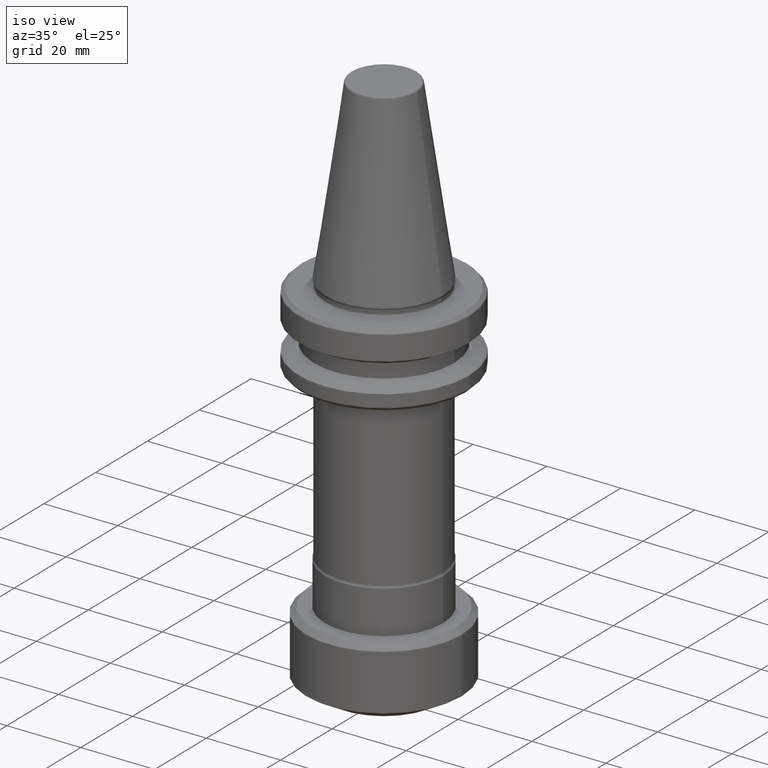
[diagram: clean part render]
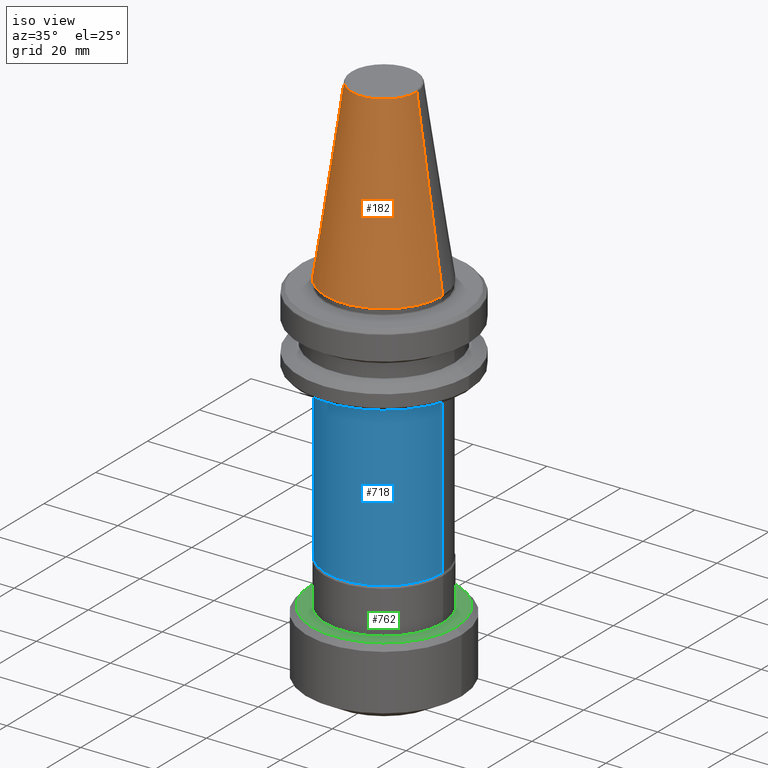
[diagram: same view with three faces highlighted in distinct colors, each labeled with its STEP entity id]
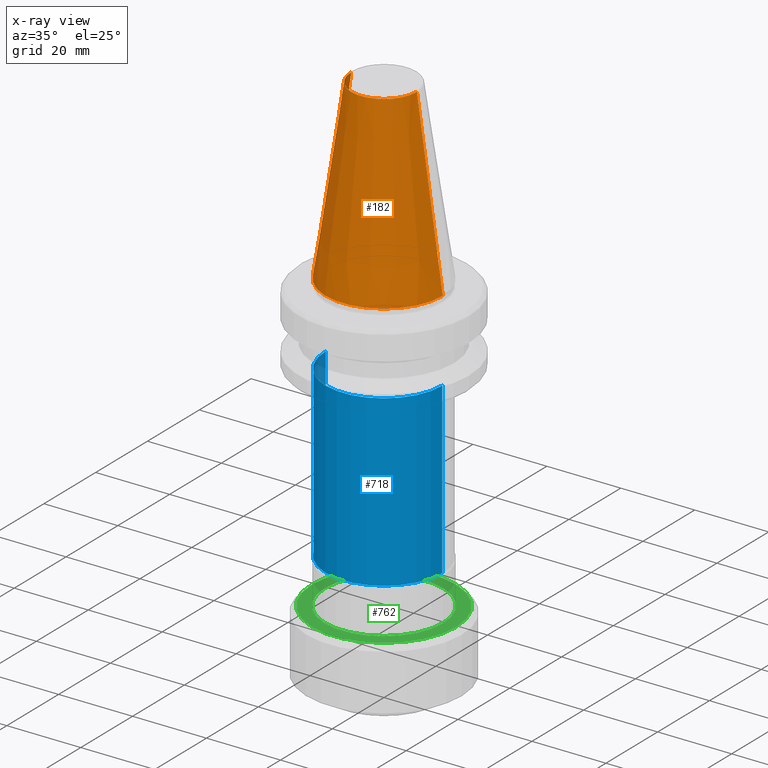
[diagram: x-ray of the same camera — body ghosted, the three highlighted faces saturated]
A machine part, iso view with three faces highlighted in distinct colors.
The next image is the same camera in x-ray (body ghosted, the three faces saturated) — at least one of them is partly hidden behind the body in this view.
Their STEP definitions:

[orange] entity #182 — the highlighted conical surface has half-angle 8.297 deg.
#20 = DIRECTION ( 'NONE',  ( 1.000000000000000000, 0.0000000000000000000, 0.0000000000000000000 ) ) ;
#31 = CARTESIAN_POINT ( 'NONE',  ( 15.87500000000000000, 0.0000000000000000000, 0.0000000000000000000 ) ) ;
#82 = CIRCLE ( 'NONE', #1374, 15.87500000000000000 ) ;
#118 = EDGE_CURVE ( 'NONE', #1371, #403, #773, .T. ) ;
#170 = AXIS2_PLACEMENT_3D ( 'NONE', #1275, #274, #1435 ) ;
#182 = ADVANCED_FACE ( 'NONE', ( #395 ), #1227, .T. ) ;
#197 = DIRECTION ( 'NONE',  ( -0.1443082272673070200, 0.0000000000000000000, -0.9895327864921743500 ) ) ;
#245 = ORIENTED_EDGE ( 'NONE', *, *, #118, .T. ) ;
#265 = ORIENTED_EDGE ( 'NONE', *, *, #982, .T. ) ;
#274 = DIRECTION ( 'NONE',  ( 0.0000000000000000000, 0.0000000000000000000, -1.000000000000000000 ) ) ;
#298 = VECTOR ( 'NONE', #738, 1000.000000000000000 ) ;
#395 = FACE_OUTER_BOUND ( 'NONE', #462, .T. ) ;
#403 = VERTEX_POINT ( 'NONE', #1173 ) ;
#462 = EDGE_LOOP ( 'NONE', ( #699, #868, #245, #265 ) ) ;
#575 = DIRECTION ( 'NONE',  ( -0.0000000000000000000, -0.0000000000000000000, 1.000000000000000000 ) ) ;
#669 = EDGE_CURVE ( 'NONE', #862, #947, #742, .T. ) ;
#698 = DIRECTION ( 'NONE',  ( -0.0000000000000000000, -0.0000000000000000000, 1.000000000000000000 ) ) ;
#699 = ORIENTED_EDGE ( 'NONE', *, *, #669, .F. ) ;
#738 = DIRECTION ( 'NONE',  ( 0.1443082272673070200, 1.767266086135363300E-017, -0.9895327864921743500 ) ) ;
#740 = VECTOR ( 'NONE', #197, 1000.000000000000000 ) ;
#742 = LINE ( 'NONE', #1286, #298 ) ;
#773 = LINE ( 'NONE', #1315, #740 ) ;
#787 = CARTESIAN_POINT ( 'NONE',  ( -8.878994801553478300, 0.0000000000000000000, 47.97215411363367100 ) ) ;
#862 = VERTEX_POINT ( 'NONE', #1320 ) ;
#868 = ORIENTED_EDGE ( 'NONE', *, *, #994, .F. ) ;
#947 = VERTEX_POINT ( 'NONE', #31 ) ;
#982 = EDGE_CURVE ( 'NONE', #403, #947, #82, .T. ) ;
#994 = EDGE_CURVE ( 'NONE', #1371, #862, #1302, .T. ) ;
#1173 = CARTESIAN_POINT ( 'NONE',  ( -15.87500000000000000, 1.944126793646423200E-015, 0.0000000000000000000 ) ) ;
#1216 = AXIS2_PLACEMENT_3D ( 'NONE', #1238, #575, #1341 ) ;
#1227 = CONICAL_SURFACE ( 'NONE', #170, 8.878994801553478300, 0.1448138465474190200 ) ;
#1238 = CARTESIAN_POINT ( 'NONE',  ( 0.0000000000000000000, 0.0000000000000000000, 47.97215411363367100 ) ) ;
#1275 = CARTESIAN_POINT ( 'NONE',  ( 0.0000000000000000000, 0.0000000000000000000, 47.97215411363367100 ) ) ;
#1286 = CARTESIAN_POINT ( 'NONE',  ( 8.878994801553478300, 1.087363256336845500E-015, 47.97215411363367100 ) ) ;
#1302 = CIRCLE ( 'NONE', #1216, 8.878994801553478300 ) ;
#1315 = CARTESIAN_POINT ( 'NONE',  ( -8.878994801553478300, 0.0000000000000000000, 47.97215411363367100 ) ) ;
#1320 = CARTESIAN_POINT ( 'NONE',  ( 8.878994801553478300, 1.515745024991634300E-015, 47.97215411363367100 ) ) ;
#1341 = DIRECTION ( 'NONE',  ( 1.000000000000000000, 0.0000000000000000000, 0.0000000000000000000 ) ) ;
#1350 = CARTESIAN_POINT ( 'NONE',  ( 0.0000000000000000000, 0.0000000000000000000, 0.0000000000000000000 ) ) ;
#1371 = VERTEX_POINT ( 'NONE', #787 ) ;
#1374 = AXIS2_PLACEMENT_3D ( 'NONE', #1350, #698, #20 ) ;
#1435 = DIRECTION ( 'NONE',  ( -1.000000000000000000, 0.0000000000000000000, 0.0000000000000000000 ) ) ;

[blue] entity #718 — the highlighted cylindrical surface (partial cylindrical patch) has radius 15.75 mm, axis along (-0, -0, 1).
#7 = ORIENTED_EDGE ( 'NONE', *, *, #736, .F. ) ;
#123 = ORIENTED_EDGE ( 'NONE', *, *, #1099, .F. ) ;
#128 = CIRCLE ( 'NONE', #417, 15.75000000000000400 ) ;
#149 = CARTESIAN_POINT ( 'NONE',  ( -15.74999999999999300, 1.928818708657081000E-015, -22.00000000000000700 ) ) ;
#151 = EDGE_CURVE ( 'NONE', #570, #838, #128, .T. ) ;
#166 = LINE ( 'NONE', #883, #717 ) ;
#200 = CARTESIAN_POINT ( 'NONE',  ( 15.75000000000000400, 0.0000000000000000000, -67.77940395325514100 ) ) ;
#236 = VECTOR ( 'NONE', #661, 1000.000000000000000 ) ;
#282 = CARTESIAN_POINT ( 'NONE',  ( -15.75000000000000400, 1.928818708657081700E-015, -67.77940395325514100 ) ) ;
#305 = ORIENTED_EDGE ( 'NONE', *, *, #151, .T. ) ;
#399 = DIRECTION ( 'NONE',  ( -0.0000000000000000000, -0.0000000000000000000, 1.000000000000000000 ) ) ;
#402 = AXIS2_PLACEMENT_3D ( 'NONE', #1014, #1233, #1122 ) ;
#409 = AXIS2_PLACEMENT_3D ( 'NONE', #1072, #399, #1187 ) ;
#417 = AXIS2_PLACEMENT_3D ( 'NONE', #887, #1228, #443 ) ;
#434 = VERTEX_POINT ( 'NONE', #149 ) ;
#443 = DIRECTION ( 'NONE',  ( 1.000000000000000000, 0.0000000000000000000, 0.0000000000000000000 ) ) ;
#487 = EDGE_LOOP ( 'NONE', ( #123, #305, #964, #7 ) ) ;
#568 = FACE_OUTER_BOUND ( 'NONE', #487, .T. ) ;
#570 = VERTEX_POINT ( 'NONE', #282 ) ;
#579 = LINE ( 'NONE', #986, #236 ) ;
#661 = DIRECTION ( 'NONE',  ( -0.0000000000000000000, -0.0000000000000000000, 1.000000000000000000 ) ) ;
#717 = VECTOR ( 'NONE', #998, 1000.000000000000000 ) ;
#718 = ADVANCED_FACE ( 'NONE', ( #568 ), #1370, .T. ) ;
#736 = EDGE_CURVE ( 'NONE', #434, #764, #819, .T. ) ;
#764 = VERTEX_POINT ( 'NONE', #971 ) ;
#819 = CIRCLE ( 'NONE', #409, 15.74999999999999300 ) ;
#838 = VERTEX_POINT ( 'NONE', #200 ) ;
#883 = CARTESIAN_POINT ( 'NONE',  ( -15.75000000000000000, 1.928818708657081300E-015, 88.34764052968309000 ) ) ;
#887 = CARTESIAN_POINT ( 'NONE',  ( 0.0000000000000000000, 0.0000000000000000000, -67.77940395325514100 ) ) ;
#964 = ORIENTED_EDGE ( 'NONE', *, *, #1065, .T. ) ;
#971 = CARTESIAN_POINT ( 'NONE',  ( 15.74999999999999300, 0.0000000000000000000, -22.00000000000000700 ) ) ;
#986 = CARTESIAN_POINT ( 'NONE',  ( 15.75000000000000000, 0.0000000000000000000, 88.34764052968309000 ) ) ;
#998 = DIRECTION ( 'NONE',  ( -0.0000000000000000000, -0.0000000000000000000, 1.000000000000000000 ) ) ;
#1014 = CARTESIAN_POINT ( 'NONE',  ( 0.0000000000000000000, 0.0000000000000000000, 88.34764052968309000 ) ) ;
#1065 = EDGE_CURVE ( 'NONE', #838, #764, #579, .T. ) ;
#1072 = CARTESIAN_POINT ( 'NONE',  ( 0.0000000000000000000, 0.0000000000000000000, -22.00000000000000700 ) ) ;
#1099 = EDGE_CURVE ( 'NONE', #570, #434, #166, .T. ) ;
#1122 = DIRECTION ( 'NONE',  ( 1.000000000000000000, 0.0000000000000000000, 0.0000000000000000000 ) ) ;
#1187 = DIRECTION ( 'NONE',  ( 1.000000000000000000, 0.0000000000000000000, 0.0000000000000000000 ) ) ;
#1228 = DIRECTION ( 'NONE',  ( -0.0000000000000000000, -0.0000000000000000000, 1.000000000000000000 ) ) ;
#1233 = DIRECTION ( 'NONE',  ( -0.0000000000000000000, -0.0000000000000000000, 1.000000000000000000 ) ) ;
#1370 = CYLINDRICAL_SURFACE ( 'NONE', #402, 15.75000000000000000 ) ;

[green] entity #762 — the highlighted planar face has unit normal (0, 0, -1).
#115 = CARTESIAN_POINT ( 'NONE',  ( 0.0000000000000000000, 0.0000000000000000000, -79.99824683744778000 ) ) ;
#175 = PLANE ( 'NONE',  #449 ) ;
#188 = VERTEX_POINT ( 'NONE', #216 ) ;
#191 = VERTEX_POINT ( 'NONE', #948 ) ;
#208 = AXIS2_PLACEMENT_3D ( 'NONE', #115, #903, #230 ) ;
#213 = ORIENTED_EDGE ( 'NONE', *, *, #943, .T. ) ;
#216 = CARTESIAN_POINT ( 'NONE',  ( -19.49999999999998900, 0.0000000000000000000, -79.99824683744778000 ) ) ;
#227 = FACE_OUTER_BOUND ( 'NONE', #1202, .T. ) ;
#230 = DIRECTION ( 'NONE',  ( 1.000000000000000000, 0.0000000000000000000, 0.0000000000000000000 ) ) ;
#270 = AXIS2_PLACEMENT_3D ( 'NONE', #681, #1438, #780 ) ;
#329 = CARTESIAN_POINT ( 'NONE',  ( 0.0000000000000000000, 0.0000000000000000000, -79.99824683744778000 ) ) ;
#348 = ORIENTED_EDGE ( 'NONE', *, *, #1031, .T. ) ;
#351 = DIRECTION ( 'NONE',  ( -0.0000000000000000000, -0.0000000000000000000, 1.000000000000000000 ) ) ;
#442 = DIRECTION ( 'NONE',  ( -1.000000000000000000, 0.0000000000000000000, 0.0000000000000000000 ) ) ;
#449 = AXIS2_PLACEMENT_3D ( 'NONE', #749, #1198, #523 ) ;
#506 = ORIENTED_EDGE ( 'NONE', *, *, #1352, .T. ) ;
#523 = DIRECTION ( 'NONE',  ( -1.000000000000000000, 0.0000000000000000000, -0.0000000000000000000 ) ) ;
#545 = ORIENTED_EDGE ( 'NONE', *, *, #1344, .T. ) ;
#649 = CARTESIAN_POINT ( 'NONE',  ( -15.94999999999999900, 1.953311644640028100E-015, -79.99824683744778000 ) ) ;
#658 = AXIS2_PLACEMENT_3D ( 'NONE', #329, #1115, #442 ) ;
#681 = CARTESIAN_POINT ( 'NONE',  ( 0.0000000000000000000, 0.0000000000000000000, -79.99824683744778000 ) ) ;
#744 = VERTEX_POINT ( 'NONE', #1347 ) ;
#749 = CARTESIAN_POINT ( 'NONE',  ( 0.0000000000000000000, 0.0000000000000000000, -79.99824683744778000 ) ) ;
#762 = ADVANCED_FACE ( 'NONE', ( #227, #1353 ), #175, .F. ) ;
#780 = DIRECTION ( 'NONE',  ( -1.000000000000000000, 0.0000000000000000000, 0.0000000000000000000 ) ) ;
#788 = CIRCLE ( 'NONE', #658, 15.94999999999999900 ) ;
#903 = DIRECTION ( 'NONE',  ( -0.0000000000000000000, -0.0000000000000000000, 1.000000000000000000 ) ) ;
#904 = CIRCLE ( 'NONE', #997, 19.49999999999998900 ) ;
#943 = EDGE_CURVE ( 'NONE', #188, #191, #1333, .T. ) ;
#948 = CARTESIAN_POINT ( 'NONE',  ( 19.49999999999998900, 2.479909768273389100E-015, -79.99824683744778000 ) ) ;
#997 = AXIS2_PLACEMENT_3D ( 'NONE', #1026, #351, #1136 ) ;
#1026 = CARTESIAN_POINT ( 'NONE',  ( 0.0000000000000000000, 0.0000000000000000000, -79.99824683744778000 ) ) ;
#1031 = EDGE_CURVE ( 'NONE', #191, #188, #904, .T. ) ;
#1115 = DIRECTION ( 'NONE',  ( 0.0000000000000000000, 0.0000000000000000000, -1.000000000000000000 ) ) ;
#1136 = DIRECTION ( 'NONE',  ( 1.000000000000000000, 0.0000000000000000000, 0.0000000000000000000 ) ) ;
#1198 = DIRECTION ( 'NONE',  ( 0.0000000000000000000, 0.0000000000000000000, -1.000000000000000000 ) ) ;
#1202 = EDGE_LOOP ( 'NONE', ( #213, #348 ) ) ;
#1301 = VERTEX_POINT ( 'NONE', #649 ) ;
#1333 = CIRCLE ( 'NONE', #208, 19.49999999999998900 ) ;
#1344 = EDGE_CURVE ( 'NONE', #744, #1301, #788, .T. ) ;
#1347 = CARTESIAN_POINT ( 'NONE',  ( 15.94999999999999900, 0.0000000000000000000, -79.99824683744778000 ) ) ;
#1352 = EDGE_CURVE ( 'NONE', #1301, #744, #1403, .T. ) ;
#1353 = FACE_BOUND ( 'NONE', #1365, .T. ) ;
#1365 = EDGE_LOOP ( 'NONE', ( #545, #506 ) ) ;
#1403 = CIRCLE ( 'NONE', #270, 15.94999999999999900 ) ;
#1438 = DIRECTION ( 'NONE',  ( 0.0000000000000000000, 0.0000000000000000000, -1.000000000000000000 ) ) ;